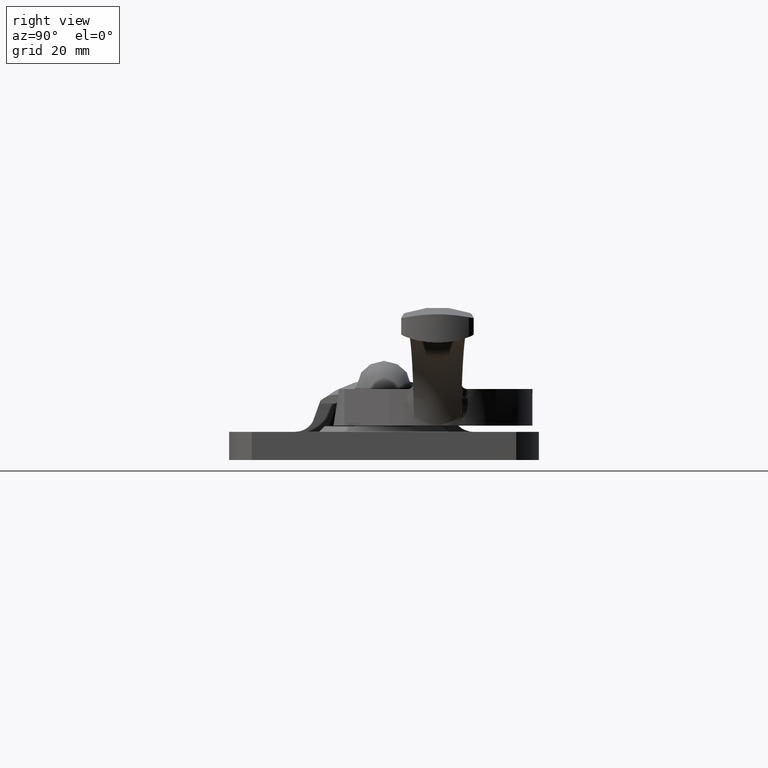
[diagram: clean part render]
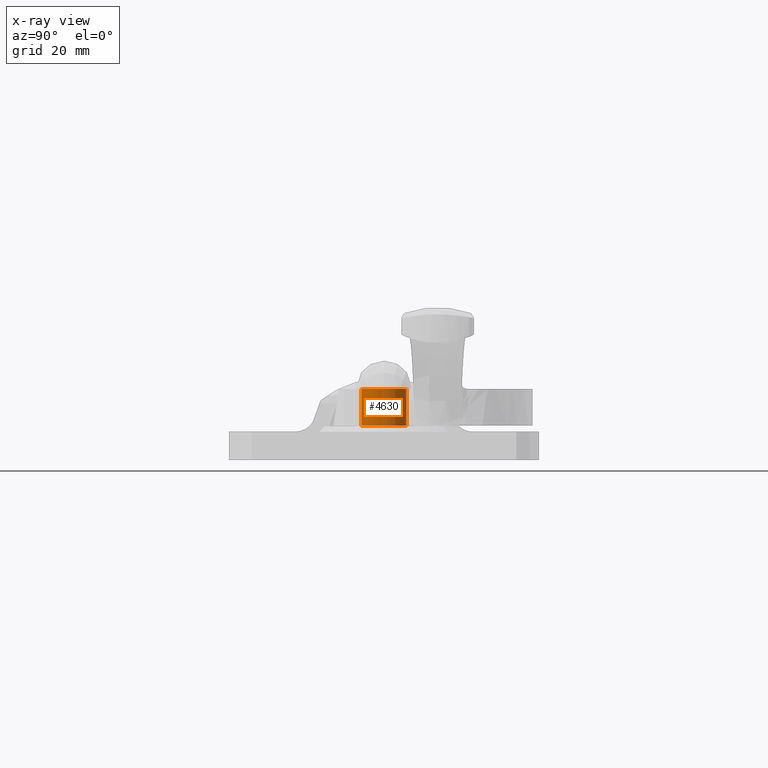
[diagram: x-ray — body ghosted, one internal face saturated and labeled with its STEP entity id]
A machine part, right view, then the same camera in x-ray: the body is ghosted and one INTERNAL B-rep face — a face not visible from any outside direction — is saturated and labeled: STEP entity #4630.
In plain terms, the highlighted face is a freeform B-spline surface patch.
Its self-contained STEP definition (entity closure, byte-faithful):
#4532=CARTESIAN_POINT('',(0.313836382911382,-3.987669334932511,5.937499999999999));
#4533=CARTESIAN_POINT('',(4.301505717843893,-3.673832952021128,5.937499999999998));
#4534=CARTESIAN_POINT('',(3.987669334932511,0.313836382911382,5.937499999999999));
#4535=CARTESIAN_POINT('',(3.673832952021128,4.301505717843893,5.937499999999998));
#4536=CARTESIAN_POINT('',(-0.313836382911382,3.987669334932511,5.937499999999999));
#4537=CARTESIAN_POINT('',(0.313836382911382,-3.987669334932511,12.766562499999999));
#4538=CARTESIAN_POINT('',(4.301505717843893,-3.673832952021128,12.766562500000001));
#4539=CARTESIAN_POINT('',(3.987669334932511,0.313836382911382,12.766562499999999));
#4540=CARTESIAN_POINT('',(3.673832952021128,4.301505717843893,12.766562500000001));
#4541=CARTESIAN_POINT('',(-0.313836382911382,3.987669334932511,12.766562499999999));
#4549=(BOUNDED_SURFACE()B_SPLINE_SURFACE(2,1,((#4532,#4537),(#4533,#4538),(#4534,#4539),(#4535,#4540),(#4536,#4541)),.UNSPECIFIED.,.F.,.F.,.U.)B_SPLINE_SURFACE_WITH_KNOTS((3,2,3),(2,2),(0.0,6.627416997969518,13.254833995939039),(0.0,6.829062500000004),.UNSPECIFIED.)GEOMETRIC_REPRESENTATION_ITEM()RATIONAL_B_SPLINE_SURFACE(((1.0,1.0),(0.707106781186548,0.707106781186548),(1.0,1.0),(0.707106781186548,0.707106781186548),(1.0,1.0)))REPRESENTATION_ITEM('')SURFACE());
#4550=CARTESIAN_POINT('',(4.0,0.0,6.100000000000001));
#4551=VERTEX_POINT('',#4550);
#4552=CARTESIAN_POINT('',(0.313836382931533,-3.987669334930925,6.100000000000001));
#4553=VERTEX_POINT('',#4552);
#4554=CARTESIAN_POINT('',(4.0,0.0,6.100000000000001));
#4555=CARTESIAN_POINT('',(4.000000000000000,-3.697561966595338,6.100000000000000));
#4556=CARTESIAN_POINT('',(0.313836382931533,-3.987669334930925,6.100000000000001));
#4564=(BOUNDED_CURVE()B_SPLINE_CURVE(2,(#4554,#4555,#4556),.UNSPECIFIED.,.F.,.U.)B_SPLINE_CURVE_WITH_KNOTS((3,3),(0.0,0.236331300631034),.UNSPECIFIED.)CURVE()GEOMETRIC_REPRESENTATION_ITEM()RATIONAL_B_SPLINE_CURVE((1.0,0.723120658607227,0.969723356168199))REPRESENTATION_ITEM(''));
#4565=EDGE_CURVE('',#4551,#4553,#4564,.T.);
#4566=ORIENTED_EDGE('',*,*,#4565,.T.);
#4567=CARTESIAN_POINT('',(0.313836382931533,-3.987669334930925,12.600000000000000));
#4568=VERTEX_POINT('',#4567);
#4569=CARTESIAN_POINT('',(0.313836382931533,-3.987669334930925,6.100000000000001));
#4570=CARTESIAN_POINT('',(0.313836382931533,-3.987669334930925,12.600000000000000));
#4571=QUASI_UNIFORM_CURVE('',1,(#4569,#4570),.UNSPECIFIED.,.F.,.U.);
#4572=EDGE_CURVE('',#4553,#4568,#4571,.T.);
#4573=ORIENTED_EDGE('',*,*,#4572,.T.);
#4574=CARTESIAN_POINT('',(4.0,0.0,12.600000000000000));
#4575=VERTEX_POINT('',#4574);
#4576=CARTESIAN_POINT('',(4.0,0.0,12.600000000000000));
#4577=CARTESIAN_POINT('',(4.000000000000000,-3.697561966595338,12.599999999999996));
#4578=CARTESIAN_POINT('',(0.313836382931533,-3.987669334930925,12.599999999999998));
#4586=(BOUNDED_CURVE()B_SPLINE_CURVE(2,(#4576,#4577,#4578),.UNSPECIFIED.,.F.,.U.)B_SPLINE_CURVE_WITH_KNOTS((3,3),(0.0,0.236331300631034),.UNSPECIFIED.)CURVE()GEOMETRIC_REPRESENTATION_ITEM()RATIONAL_B_SPLINE_CURVE((1.0,0.723120658607227,0.969723356168199))REPRESENTATION_ITEM(''));
#4587=EDGE_CURVE('',#4575,#4568,#4586,.T.);
#4588=ORIENTED_EDGE('',*,*,#4587,.F.);
#4589=CARTESIAN_POINT('',(-0.313836382931533,3.987669334930925,12.600000000000000));
#4590=VERTEX_POINT('',#4589);
#4591=CARTESIAN_POINT('',(-0.313836382931533,3.987669334930925,12.599999999999996));
#4592=CARTESIAN_POINT('',(-0.157160428050924,4.000000000000000,12.599999999999998));
#4593=CARTESIAN_POINT('',(0.0,4.0,12.600000000000000));
#4594=CARTESIAN_POINT('',(4.000000000000000,4.000000000000000,12.599999999999996));
#4595=CARTESIAN_POINT('',(4.0,0.0,12.600000000000000));
#4603=(BOUNDED_CURVE()B_SPLINE_CURVE(2,(#4591,#4592,#4593,#4594,#4595),.UNSPECIFIED.,.F.,.U.)B_SPLINE_CURVE_WITH_KNOTS((3,2,3),(0.736331300631034,0.750000000000000,1.0),.UNSPECIFIED.)CURVE()GEOMETRIC_REPRESENTATION_ITEM()RATIONAL_B_SPLINE_CURVE((0.969723356168199,0.983986122579321,1.0,0.707106781186548,1.0))REPRESENTATION_ITEM(''));
#4604=EDGE_CURVE('',#4590,#4575,#4603,.T.);
#4605=ORIENTED_EDGE('',*,*,#4604,.F.);
#4606=CARTESIAN_POINT('',(-0.313836382931533,3.987669334930925,6.100000000000001));
#4607=VERTEX_POINT('',#4606);
#4608=CARTESIAN_POINT('',(-0.313836382931533,3.987669334930925,6.100000000000001));
#4609=CARTESIAN_POINT('',(-0.313836382931533,3.987669334930925,12.600000000000000));
#4610=QUASI_UNIFORM_CURVE('',1,(#4608,#4609),.UNSPECIFIED.,.F.,.U.);
#4611=EDGE_CURVE('',#4607,#4590,#4610,.T.);
#4612=ORIENTED_EDGE('',*,*,#4611,.F.);
#4613=CARTESIAN_POINT('',(-0.313836382931533,3.987669334930925,6.100000000000001));
#4614=CARTESIAN_POINT('',(-0.157160428050924,4.000000000000000,6.100000000000001));
#4615=CARTESIAN_POINT('',(0.0,4.0,6.100000000000001));
#4616=CARTESIAN_POINT('',(4.000000000000000,4.000000000000000,6.100000000000001));
#4617=CARTESIAN_POINT('',(4.0,0.0,6.100000000000001));
#4625=(BOUNDED_CURVE()B_SPLINE_CURVE(2,(#4613,#4614,#4615,#4616,#4617),.UNSPECIFIED.,.F.,.U.)B_SPLINE_CURVE_WITH_KNOTS((3,2,3),(0.736331300631034,0.750000000000000,1.0),.UNSPECIFIED.)CURVE()GEOMETRIC_REPRESENTATION_ITEM()RATIONAL_B_SPLINE_CURVE((0.969723356168199,0.983986122579321,1.0,0.707106781186548,1.0))REPRESENTATION_ITEM(''));
#4626=EDGE_CURVE('',#4607,#4551,#4625,.T.);
#4627=ORIENTED_EDGE('',*,*,#4626,.T.);
#4628=EDGE_LOOP('',(#4566,#4573,#4588,#4605,#4612,#4627));
#4629=FACE_OUTER_BOUND('',#4628,.T.);
#4630=ADVANCED_FACE('',(#4629),#4549,.F.);